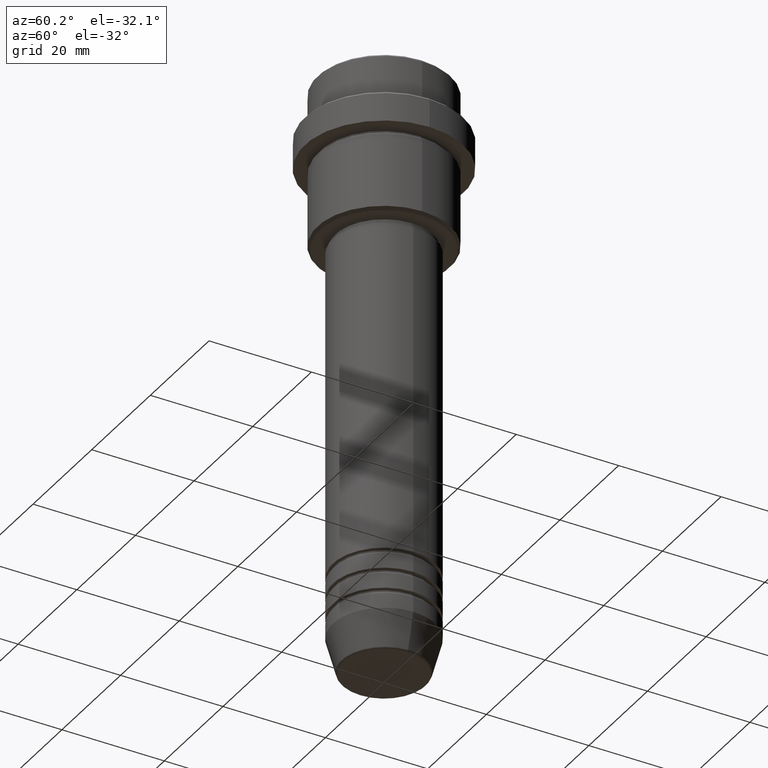
[diagram: clean part render]
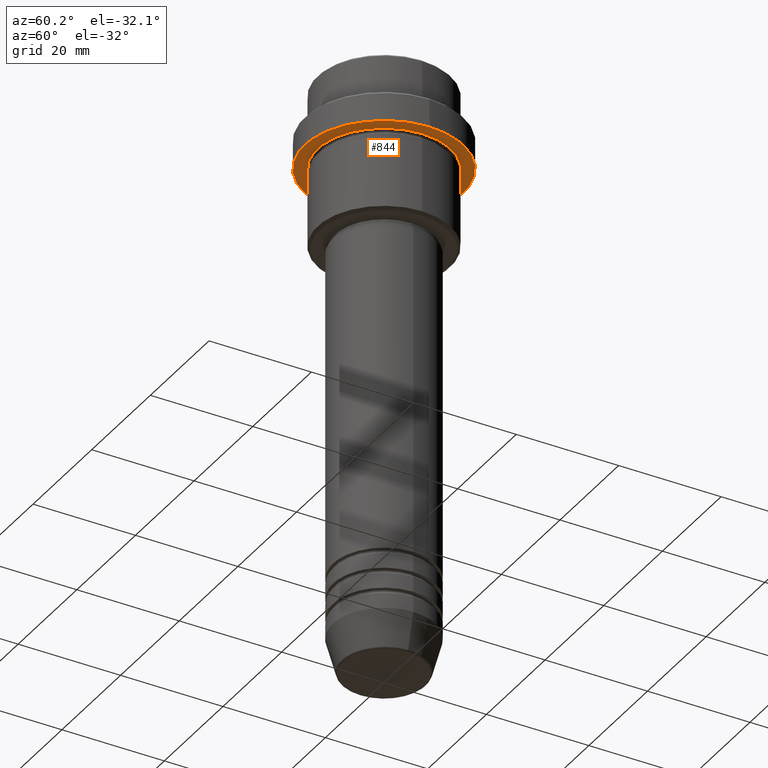
[diagram: same view with one face highlighted and labeled with its STEP entity id]
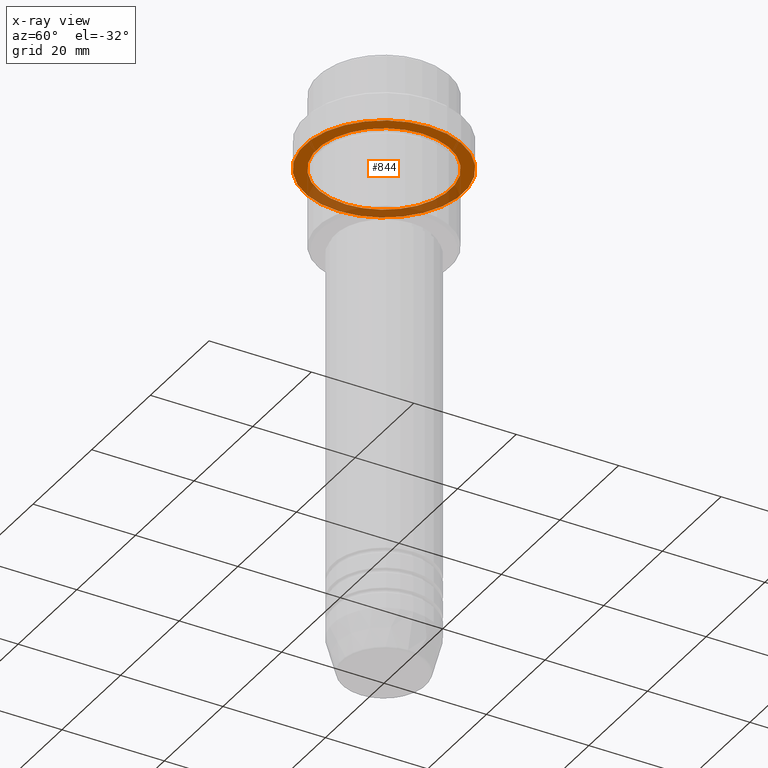
[diagram: x-ray of the same camera — body ghosted, the highlighted face saturated]
A machine part, auxiliary view. The second image highlights one B-rep face of the part: STEP entity #844.
The next image is the same camera in x-ray: the body ghosted, the highlighted face saturated — about 34% of this face is hidden behind the body in this view.
In plain terms, the highlighted planar face has unit normal (0, 0, -1).
Its self-contained STEP definition (entity closure, byte-faithful):
#6 = CIRCLE ( 'NONE', #238, 15.50000000000000000 ) ;
#9 = DIRECTION ( 'NONE',  ( -1.000000000000000000, 0.000000000000000000, 0.000000000000000000 ) ) ;
#71 = EDGE_CURVE ( 'NONE', #1031, #178, #332, .T. ) ;
#75 = CIRCLE ( 'NONE', #814, 15.50000000000000000 ) ;
#76 = DIRECTION ( 'NONE',  ( 1.000000000000000000, 0.000000000000000000, 0.000000000000000000 ) ) ;
#98 = EDGE_CURVE ( 'NONE', #841, #724, #6, .T. ) ;
#168 = CIRCLE ( 'NONE', #427, 12.99999999999999645 ) ;
#178 = VERTEX_POINT ( 'NONE', #587 ) ;
#196 = DIRECTION ( 'NONE',  ( 0.000000000000000000, 0.000000000000000000, -1.000000000000000000 ) ) ;
#220 = CARTESIAN_POINT ( 'NONE',  ( 0.000000000000000000, 0.000000000000000000, -15.00000000000000000 ) ) ;
#228 = DIRECTION ( 'NONE',  ( 1.000000000000000000, 0.000000000000000000, 0.000000000000000000 ) ) ;
#238 = AXIS2_PLACEMENT_3D ( 'NONE', #1095, #845, #76 ) ;
#244 = EDGE_LOOP ( 'NONE', ( #895, #1090 ) ) ;
#332 = CIRCLE ( 'NONE', #1399, 12.99999999999999645 ) ;
#394 = EDGE_LOOP ( 'NONE', ( #503, #403 ) ) ;
#403 = ORIENTED_EDGE ( 'NONE', *, *, #947, .F. ) ;
#427 = AXIS2_PLACEMENT_3D ( 'NONE', #533, #551, #9 ) ;
#503 = ORIENTED_EDGE ( 'NONE', *, *, #98, .F. ) ;
#533 = CARTESIAN_POINT ( 'NONE',  ( 0.000000000000000000, 0.000000000000000000, -15.00000000000000000 ) ) ;
#551 = DIRECTION ( 'NONE',  ( -0.000000000000000000, -0.000000000000000000, 1.000000000000000000 ) ) ;
#587 = CARTESIAN_POINT ( 'NONE',  ( -12.99999999999999645, 0.000000000000000000, -15.00000000000000000 ) ) ;
#629 = DIRECTION ( 'NONE',  ( -1.000000000000000000, 0.000000000000000000, 0.000000000000000000 ) ) ;
#641 = DIRECTION ( 'NONE',  ( -0.000000000000000000, -0.000000000000000000, 1.000000000000000000 ) ) ;
#724 = VERTEX_POINT ( 'NONE', #1028 ) ;
#744 = DIRECTION ( 'NONE',  ( -1.000000000000000000, 0.000000000000000000, -0.000000000000000000 ) ) ;
#760 = CARTESIAN_POINT ( 'NONE',  ( 0.000000000000000000, 0.000000000000000000, -15.00000000000000000 ) ) ;
#814 = AXIS2_PLACEMENT_3D ( 'NONE', #220, #641, #228 ) ;
#841 = VERTEX_POINT ( 'NONE', #1160 ) ;
#844 = ADVANCED_FACE ( 'NONE', ( #946, #961 ), #1259, .T. ) ;
#845 = DIRECTION ( 'NONE',  ( -0.000000000000000000, -0.000000000000000000, 1.000000000000000000 ) ) ;
#895 = ORIENTED_EDGE ( 'NONE', *, *, #1394, .T. ) ;
#935 = CARTESIAN_POINT ( 'NONE',  ( 0.000000000000000000, 15.50000000000000000, -15.00000000000000000 ) ) ;
#946 = FACE_BOUND ( 'NONE', #244, .T. ) ;
#947 = EDGE_CURVE ( 'NONE', #724, #841, #75, .T. ) ;
#961 = FACE_OUTER_BOUND ( 'NONE', #394, .T. ) ;
#978 = CARTESIAN_POINT ( 'NONE',  ( 12.99999999999999645, 1.592040838891558701E-15, -15.00000000000000000 ) ) ;
#1028 = CARTESIAN_POINT ( 'NONE',  ( -15.50000000000000000, 1.898202538678397557E-15, -15.00000000000000000 ) ) ;
#1031 = VERTEX_POINT ( 'NONE', #978 ) ;
#1090 = ORIENTED_EDGE ( 'NONE', *, *, #71, .T. ) ;
#1095 = CARTESIAN_POINT ( 'NONE',  ( 0.000000000000000000, 0.000000000000000000, -15.00000000000000000 ) ) ;
#1160 = CARTESIAN_POINT ( 'NONE',  ( 15.50000000000000000, 0.000000000000000000, -15.00000000000000000 ) ) ;
#1175 = AXIS2_PLACEMENT_3D ( 'NONE', #935, #196, #744 ) ;
#1190 = DIRECTION ( 'NONE',  ( -0.000000000000000000, -0.000000000000000000, 1.000000000000000000 ) ) ;
#1259 = PLANE ( 'NONE',  #1175 ) ;
#1394 = EDGE_CURVE ( 'NONE', #178, #1031, #168, .T. ) ;
#1399 = AXIS2_PLACEMENT_3D ( 'NONE', #760, #1190, #629 ) ;